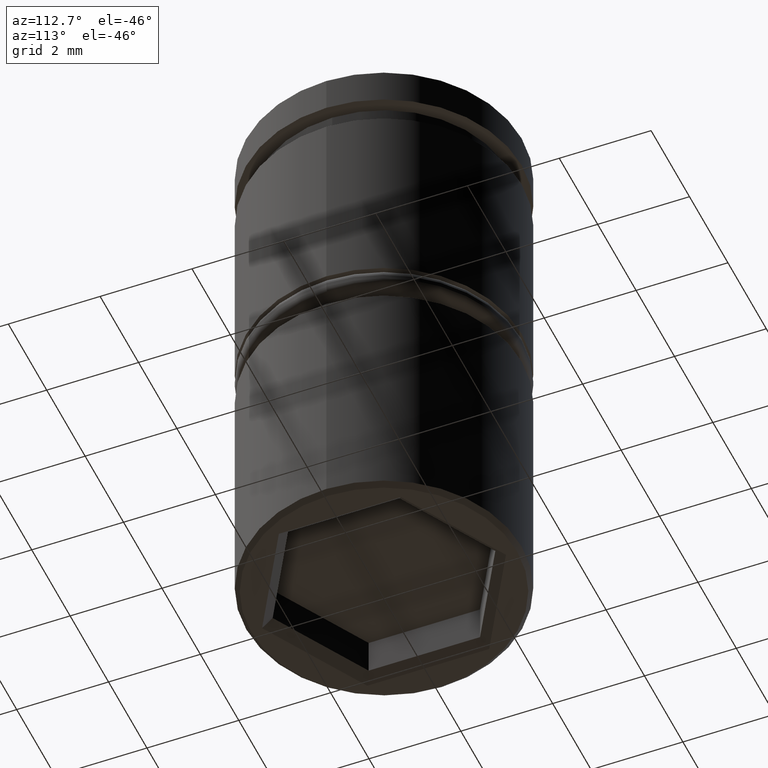
[diagram: clean part render]
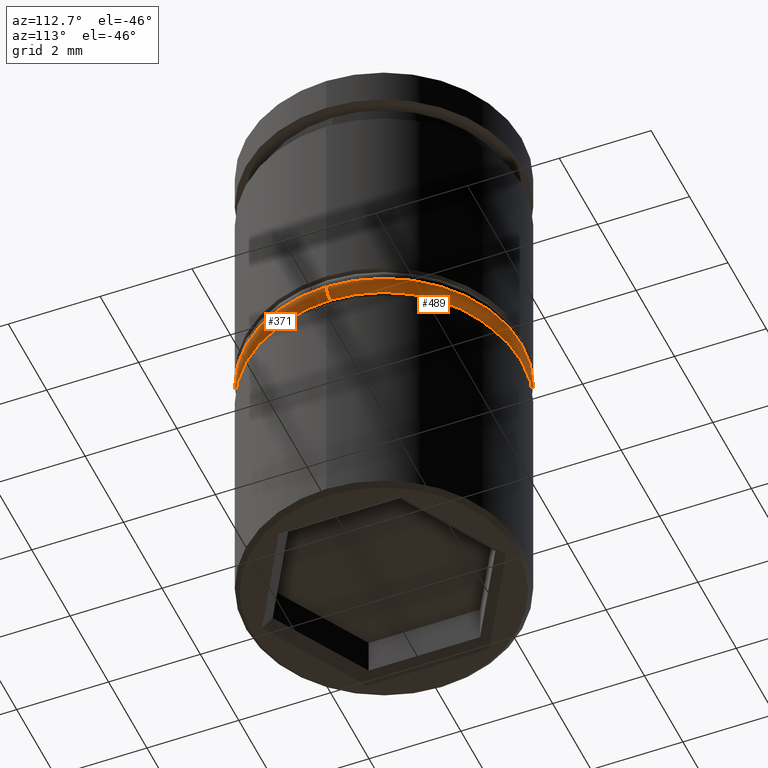
[diagram: same view with one multi-face feature highlighted, each face labeled with its STEP entity id]
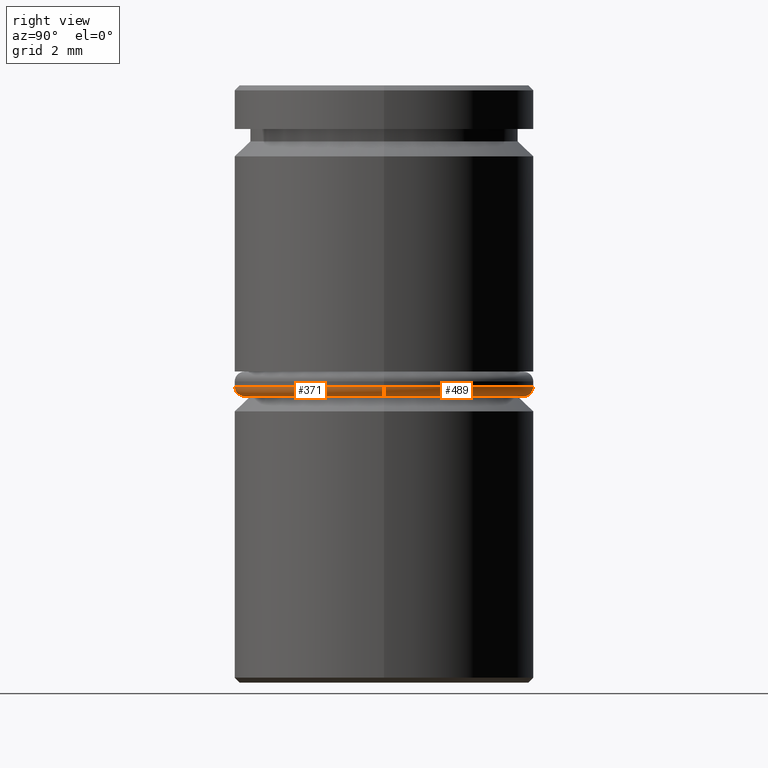
[diagram: same view with one multi-face feature highlighted, each face labeled with its STEP entity id]
A machine part, auxiliary view. The highlighted faces form ONE feature: a constant-radius fillet chain: 2 tangent blend faces with common blend radius 0.2 mm. The faces share edges in the B-rep.
A second angle (right view) of the same feature is appended — it is thin or edge-on in the first view.
Their STEP definitions:
[1] entity #489 (Torus):
#5 = AXIS2_PLACEMENT_3D ( 'NONE', #814, #96, #627 ) ;
#17 = DIRECTION ( 'NONE',  ( 0.000000000000000000, -1.000000000000000000, 0.000000000000000000 ) ) ;
#42 = CIRCLE ( 'NONE', #324, 0.1999999999999996503 ) ;
#58 = CIRCLE ( 'NONE', #362, 3.000000000000000444 ) ;
#96 = DIRECTION ( 'NONE',  ( 1.224646799147353207E-16, 1.000000000000000000, -0.000000000000000000 ) ) ;
#102 = CARTESIAN_POINT ( 'NONE',  ( 0.000000000000000000, 0.000000000000000000, -6.249999999999999112 ) ) ;
#131 = VERTEX_POINT ( 'NONE', #785 ) ;
#186 = ORIENTED_EDGE ( 'NONE', *, *, #1149, .T. ) ;
#201 = VERTEX_POINT ( 'NONE', #1125 ) ;
#240 = DIRECTION ( 'NONE',  ( 0.000000000000000000, 0.000000000000000000, 1.000000000000000000 ) ) ;
#283 = EDGE_CURVE ( 'NONE', #131, #469, #583, .T. ) ;
#324 = AXIS2_PLACEMENT_3D ( 'NONE', #830, #17, #729 ) ;
#362 = AXIS2_PLACEMENT_3D ( 'NONE', #736, #924, #907 ) ;
#389 = ORIENTED_EDGE ( 'NONE', *, *, #855, .F. ) ;
#467 = AXIS2_PLACEMENT_3D ( 'NONE', #102, #468, #828 ) ;
#468 = DIRECTION ( 'NONE',  ( -0.000000000000000000, -0.000000000000000000, -1.000000000000000000 ) ) ;
#469 = VERTEX_POINT ( 'NONE', #989 ) ;
#489 = ADVANCED_FACE ( 'NONE', ( #522 ), #717, .T. ) ;
#517 = CIRCLE ( 'NONE', #5, 0.2000000000000000944 ) ;
#522 = FACE_OUTER_BOUND ( 'NONE', #536, .T. ) ;
#536 = EDGE_LOOP ( 'NONE', ( #917, #186, #780, #389 ) ) ;
#583 = CIRCLE ( 'NONE', #467, 2.800000000000000266 ) ;
#627 = DIRECTION ( 'NONE',  ( -1.000000000000000000, 1.224646799147353207E-16, 0.000000000000000000 ) ) ;
#717 = TOROIDAL_SURFACE ( 'NONE', #876, 2.800000000000000266, 0.2000000000000000111 ) ;
#729 = DIRECTION ( 'NONE',  ( 0.000000000000000000, 0.000000000000000000, -1.000000000000000000 ) ) ;
#736 = CARTESIAN_POINT ( 'NONE',  ( 0.000000000000000000, 0.000000000000000000, -6.049999999999999822 ) ) ;
#780 = ORIENTED_EDGE ( 'NONE', *, *, #1129, .F. ) ;
#785 = CARTESIAN_POINT ( 'NONE',  ( -2.800000000000000266, 3.551475717527324325E-16, -6.249999999999999112 ) ) ;
#814 = CARTESIAN_POINT ( 'NONE',  ( -2.800000000000000266, 3.429011037612589276E-16, -6.049999999999999822 ) ) ;
#828 = DIRECTION ( 'NONE',  ( 1.000000000000000000, 0.000000000000000000, 0.000000000000000000 ) ) ;
#830 = CARTESIAN_POINT ( 'NONE',  ( 2.800000000000000266, 0.000000000000000000, -6.049999999999999822 ) ) ;
#855 = EDGE_CURVE ( 'NONE', #469, #201, #42, .T. ) ;
#876 = AXIS2_PLACEMENT_3D ( 'NONE', #1170, #240, #881 ) ;
#881 = DIRECTION ( 'NONE',  ( 1.000000000000000000, 0.000000000000000000, 0.000000000000000000 ) ) ;
#907 = DIRECTION ( 'NONE',  ( 1.000000000000000000, 0.000000000000000000, 0.000000000000000000 ) ) ;
#917 = ORIENTED_EDGE ( 'NONE', *, *, #283, .F. ) ;
#924 = DIRECTION ( 'NONE',  ( 0.000000000000000000, 0.000000000000000000, 1.000000000000000000 ) ) ;
#964 = CARTESIAN_POINT ( 'NONE',  ( -3.000000000000000444, 3.673940397442060361E-16, -6.049999999999999822 ) ) ;
#989 = CARTESIAN_POINT ( 'NONE',  ( 2.800000000000000266, 0.000000000000000000, -6.249999999999999112 ) ) ;
#1088 = VERTEX_POINT ( 'NONE', #964 ) ;
#1125 = CARTESIAN_POINT ( 'NONE',  ( 3.000000000000000444, 0.000000000000000000, -6.049999999999999822 ) ) ;
#1129 = EDGE_CURVE ( 'NONE', #201, #1088, #58, .T. ) ;
#1149 = EDGE_CURVE ( 'NONE', #131, #1088, #517, .T. ) ;
#1170 = CARTESIAN_POINT ( 'NONE',  ( 0.000000000000000000, 0.000000000000000000, -6.049999999999999822 ) ) ;
[2] entity #371 (Torus):
#5 = AXIS2_PLACEMENT_3D ( 'NONE', #814, #96, #627 ) ;
#16 = ORIENTED_EDGE ( 'NONE', *, *, #549, .F. ) ;
#17 = DIRECTION ( 'NONE',  ( 0.000000000000000000, -1.000000000000000000, 0.000000000000000000 ) ) ;
#42 = CIRCLE ( 'NONE', #324, 0.1999999999999996503 ) ;
#54 = AXIS2_PLACEMENT_3D ( 'NONE', #898, #615, #74 ) ;
#57 = DIRECTION ( 'NONE',  ( 0.000000000000000000, 0.000000000000000000, 1.000000000000000000 ) ) ;
#74 = DIRECTION ( 'NONE',  ( 1.000000000000000000, 0.000000000000000000, 0.000000000000000000 ) ) ;
#76 = EDGE_LOOP ( 'NONE', ( #848, #776, #375, #16 ) ) ;
#96 = DIRECTION ( 'NONE',  ( 1.224646799147353207E-16, 1.000000000000000000, -0.000000000000000000 ) ) ;
#131 = VERTEX_POINT ( 'NONE', #785 ) ;
#201 = VERTEX_POINT ( 'NONE', #1125 ) ;
#208 = FACE_OUTER_BOUND ( 'NONE', #76, .T. ) ;
#324 = AXIS2_PLACEMENT_3D ( 'NONE', #830, #17, #729 ) ;
#371 = ADVANCED_FACE ( 'NONE', ( #208 ), #909, .T. ) ;
#375 = ORIENTED_EDGE ( 'NONE', *, *, #855, .T. ) ;
#437 = EDGE_CURVE ( 'NONE', #469, #131, #1111, .T. ) ;
#469 = VERTEX_POINT ( 'NONE', #989 ) ;
#517 = CIRCLE ( 'NONE', #5, 0.2000000000000000944 ) ;
#549 = EDGE_CURVE ( 'NONE', #1088, #201, #647, .T. ) ;
#615 = DIRECTION ( 'NONE',  ( -0.000000000000000000, -0.000000000000000000, -1.000000000000000000 ) ) ;
#621 = CARTESIAN_POINT ( 'NONE',  ( 0.000000000000000000, 0.000000000000000000, -6.049999999999999822 ) ) ;
#627 = DIRECTION ( 'NONE',  ( -1.000000000000000000, 1.224646799147353207E-16, 0.000000000000000000 ) ) ;
#647 = CIRCLE ( 'NONE', #854, 3.000000000000000444 ) ;
#729 = DIRECTION ( 'NONE',  ( 0.000000000000000000, 0.000000000000000000, -1.000000000000000000 ) ) ;
#776 = ORIENTED_EDGE ( 'NONE', *, *, #437, .F. ) ;
#785 = CARTESIAN_POINT ( 'NONE',  ( -2.800000000000000266, 3.551475717527324325E-16, -6.249999999999999112 ) ) ;
#814 = CARTESIAN_POINT ( 'NONE',  ( -2.800000000000000266, 3.429011037612589276E-16, -6.049999999999999822 ) ) ;
#830 = CARTESIAN_POINT ( 'NONE',  ( 2.800000000000000266, 0.000000000000000000, -6.049999999999999822 ) ) ;
#848 = ORIENTED_EDGE ( 'NONE', *, *, #1149, .F. ) ;
#854 = AXIS2_PLACEMENT_3D ( 'NONE', #621, #57, #1099 ) ;
#855 = EDGE_CURVE ( 'NONE', #469, #201, #42, .T. ) ;
#858 = DIRECTION ( 'NONE',  ( 0.000000000000000000, 0.000000000000000000, 1.000000000000000000 ) ) ;
#898 = CARTESIAN_POINT ( 'NONE',  ( 0.000000000000000000, 0.000000000000000000, -6.249999999999999112 ) ) ;
#909 = TOROIDAL_SURFACE ( 'NONE', #1161, 2.800000000000000266, 0.2000000000000000111 ) ;
#964 = CARTESIAN_POINT ( 'NONE',  ( -3.000000000000000444, 3.673940397442060361E-16, -6.049999999999999822 ) ) ;
#989 = CARTESIAN_POINT ( 'NONE',  ( 2.800000000000000266, 0.000000000000000000, -6.249999999999999112 ) ) ;
#1088 = VERTEX_POINT ( 'NONE', #964 ) ;
#1099 = DIRECTION ( 'NONE',  ( 1.000000000000000000, 0.000000000000000000, 0.000000000000000000 ) ) ;
#1111 = CIRCLE ( 'NONE', #54, 2.800000000000000266 ) ;
#1125 = CARTESIAN_POINT ( 'NONE',  ( 3.000000000000000444, 0.000000000000000000, -6.049999999999999822 ) ) ;
#1131 = CARTESIAN_POINT ( 'NONE',  ( 0.000000000000000000, 0.000000000000000000, -6.049999999999999822 ) ) ;
#1142 = DIRECTION ( 'NONE',  ( 1.000000000000000000, 0.000000000000000000, 0.000000000000000000 ) ) ;
#1149 = EDGE_CURVE ( 'NONE', #131, #1088, #517, .T. ) ;
#1161 = AXIS2_PLACEMENT_3D ( 'NONE', #1131, #858, #1142 ) ;